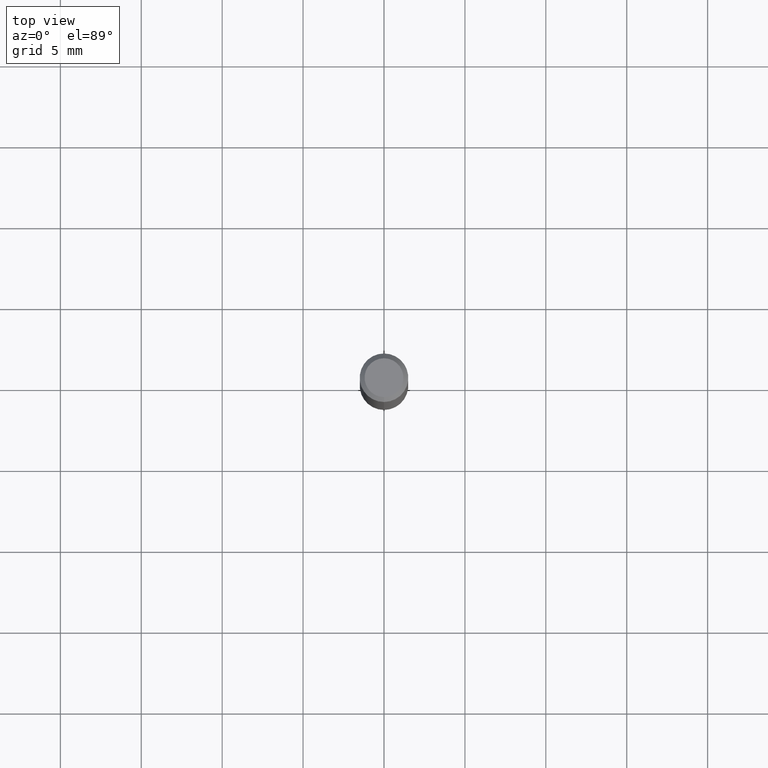
[diagram: clean part render]
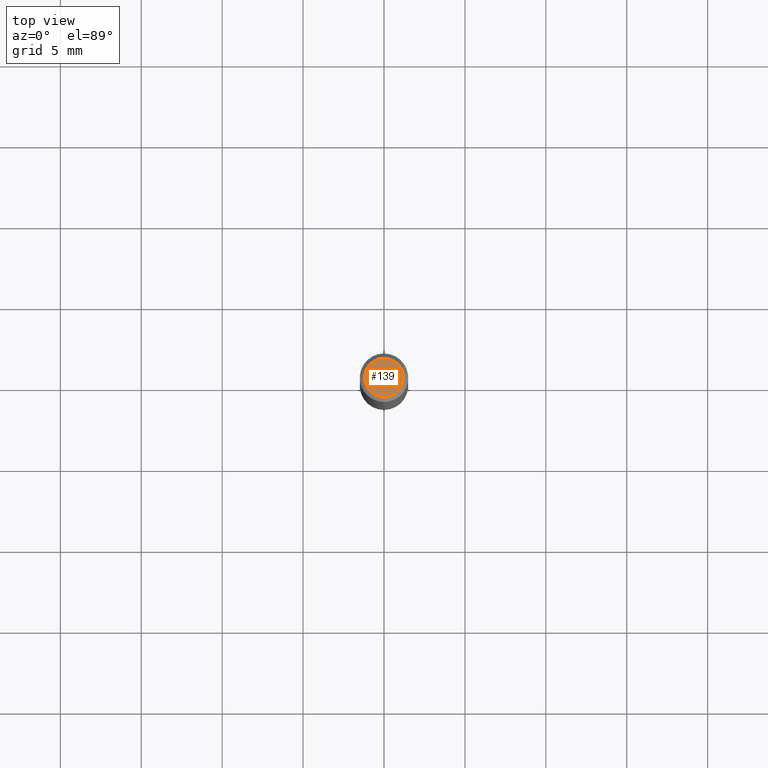
[diagram: same view with one face highlighted and labeled with its STEP entity id]
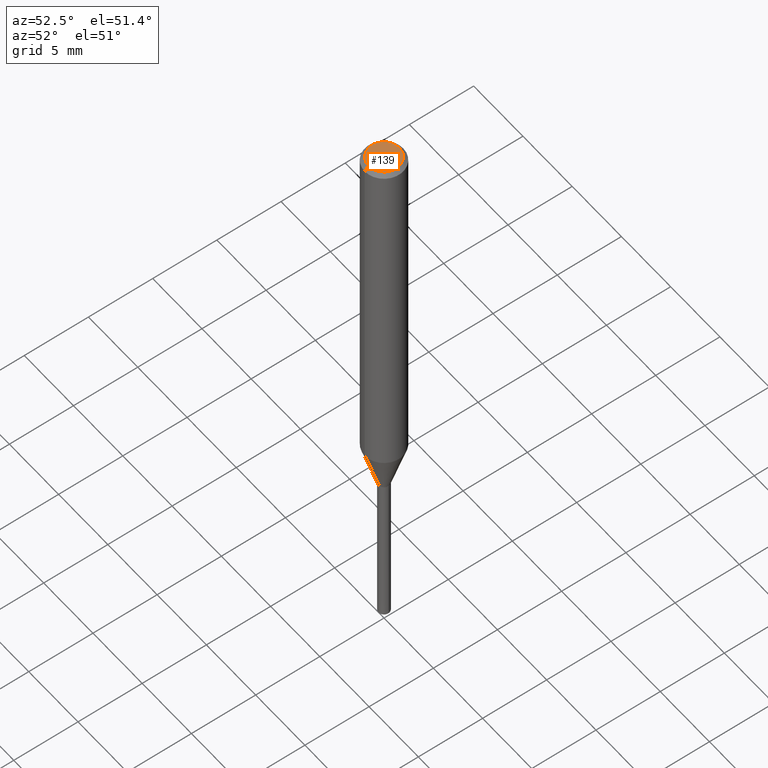
[diagram: same view with one face highlighted and labeled with its STEP entity id]
A machine part, top view. The second image highlights one B-rep face of the part: STEP entity #139.
A second angle (auxiliary view) of the same face is appended — the face is thin or edge-on in the first view.
In plain terms, the highlighted planar face has unit normal (-0, 0, 1).
Its self-contained STEP definition (entity closure, byte-faithful):
#101=EDGE_CURVE('',#145,#163,#237,.T.);
#139=ADVANCED_FACE('',(#282),#283,.T.);
#145=VERTEX_POINT('',#289);
#163=VERTEX_POINT('',#308);
#169=EDGE_CURVE('',#163,#145,#314,.T.);
#237=CIRCLE('',#384,1.2);
#282=FACE_OUTER_BOUND('',#433,.T.);
#283=PLANE('',#434);
#289=CARTESIAN_POINT('',(0.0,1.2,0.0));
#308=CARTESIAN_POINT('',(1.46952762458685E-016,-1.2,0.0));
#314=CIRCLE('',#476,1.2);
#384=AXIS2_PLACEMENT_3D('',#550,#551,#552);
#433=EDGE_LOOP('',(#616,#617));
#434=AXIS2_PLACEMENT_3D('',#618,#619,#620);
#476=AXIS2_PLACEMENT_3D('',#644,#645,#646);
#550=CARTESIAN_POINT('',(0.0,0.0,0.0));
#551=DIRECTION('',(0.0,0.0,-1.0));
#552=DIRECTION('',(0.0,1.0,0.0));
#616=ORIENTED_EDGE('',*,*,#101,.F.);
#617=ORIENTED_EDGE('',*,*,#169,.F.);
#618=CARTESIAN_POINT('',(0.0,0.6,0.0));
#619=DIRECTION('',(-0.0,0.0,1.0));
#620=DIRECTION('',(0.0,-1.0,0.0));
#644=CARTESIAN_POINT('',(0.0,0.0,0.0));
#645=DIRECTION('',(0.0,0.0,-1.0));
#646=DIRECTION('',(0.0,1.0,0.0));